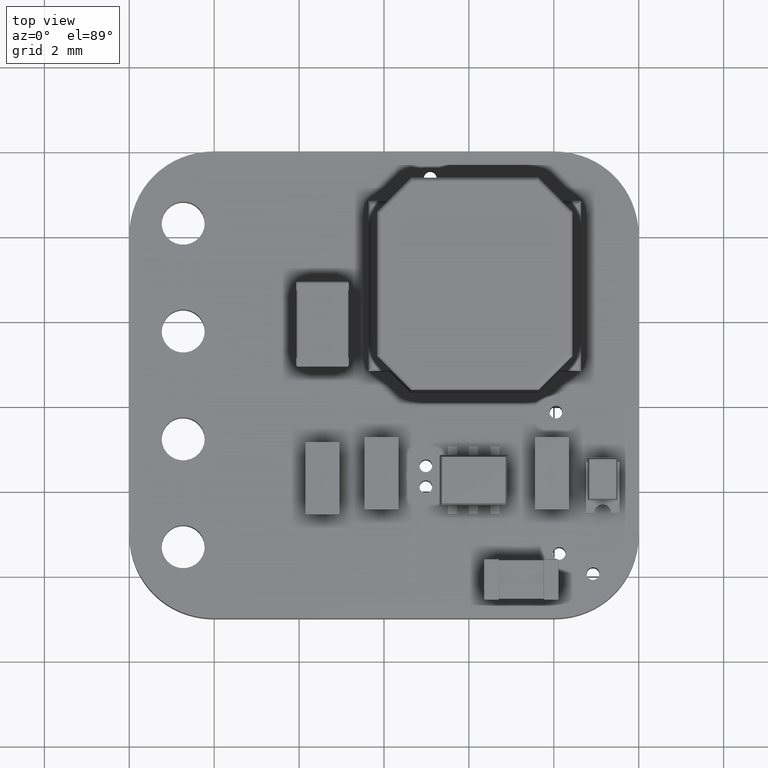
[diagram: clean part render]
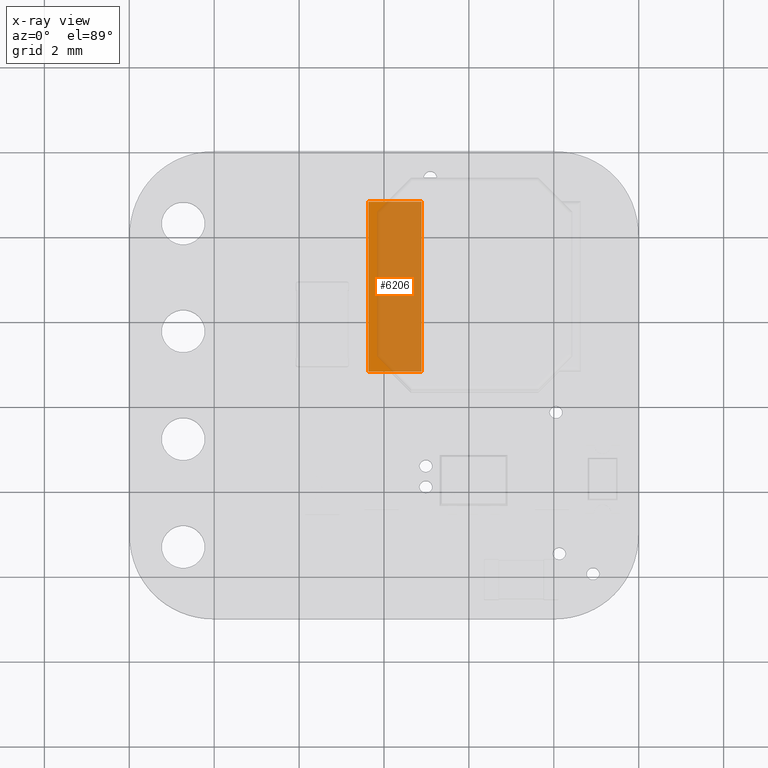
[diagram: x-ray — body ghosted, one internal face saturated and labeled with its STEP entity id]
A machine part, top view, then the same camera in x-ray: the body is ghosted and one INTERNAL B-rep face — a face not visible from any outside direction — is saturated and labeled: STEP entity #6206.
In plain terms, the highlighted planar face has unit normal (0, -0, -1).
Its self-contained STEP definition (entity closure, byte-faithful):
#6097 = VERTEX_POINT('',#6098);
#6098 = CARTESIAN_POINT('',(2.5,0.1,-2.));
#6104 = EDGE_CURVE('',#6105,#6097,#6107,.T.);
#6105 = VERTEX_POINT('',#6106);
#6106 = CARTESIAN_POINT('',(2.5,0.1,2.));
#6107 = LINE('',#6108,#6109);
#6108 = CARTESIAN_POINT('',(2.5,0.1,2.));
#6109 = VECTOR('',#6110,1.);
#6110 = DIRECTION('',(0.,0.,-1.));
#6135 = VERTEX_POINT('',#6136);
#6136 = CARTESIAN_POINT('',(1.25,0.1,-2.));
#6142 = EDGE_CURVE('',#6097,#6135,#6143,.T.);
#6143 = LINE('',#6144,#6145);
#6144 = CARTESIAN_POINT('',(1.25,0.1,-2.));
#6145 = VECTOR('',#6146,1.);
#6146 = DIRECTION('',(-1.,-0.,-0.));
#6166 = VERTEX_POINT('',#6167);
#6167 = CARTESIAN_POINT('',(1.25,0.1,2.));
#6173 = EDGE_CURVE('',#6135,#6166,#6174,.T.);
#6174 = LINE('',#6175,#6176);
#6175 = CARTESIAN_POINT('',(1.25,0.1,2.));
#6176 = VECTOR('',#6177,1.);
#6177 = DIRECTION('',(-0.,-0.,1.));
#6195 = EDGE_CURVE('',#6166,#6105,#6196,.T.);
#6196 = LINE('',#6197,#6198);
#6197 = CARTESIAN_POINT('',(1.25,0.1,2.));
#6198 = VECTOR('',#6199,1.);
#6199 = DIRECTION('',(1.,0.,0.));
#6206 = ADVANCED_FACE('',(#6207),#6213,.F.);
#6207 = FACE_BOUND('',#6208,.T.);
#6208 = EDGE_LOOP('',(#6209,#6210,#6211,#6212));
#6209 = ORIENTED_EDGE('',*,*,#6104,.T.);
#6210 = ORIENTED_EDGE('',*,*,#6142,.T.);
#6211 = ORIENTED_EDGE('',*,*,#6173,.T.);
#6212 = ORIENTED_EDGE('',*,*,#6195,.T.);
#6213 = PLANE('',#6214);
#6214 = AXIS2_PLACEMENT_3D('',#6215,#6216,#6217);
#6215 = CARTESIAN_POINT('',(2.5,0.1,-2.));
#6216 = DIRECTION('',(0.,-1.,0.));
#6217 = DIRECTION('',(0.,-0.,-1.));